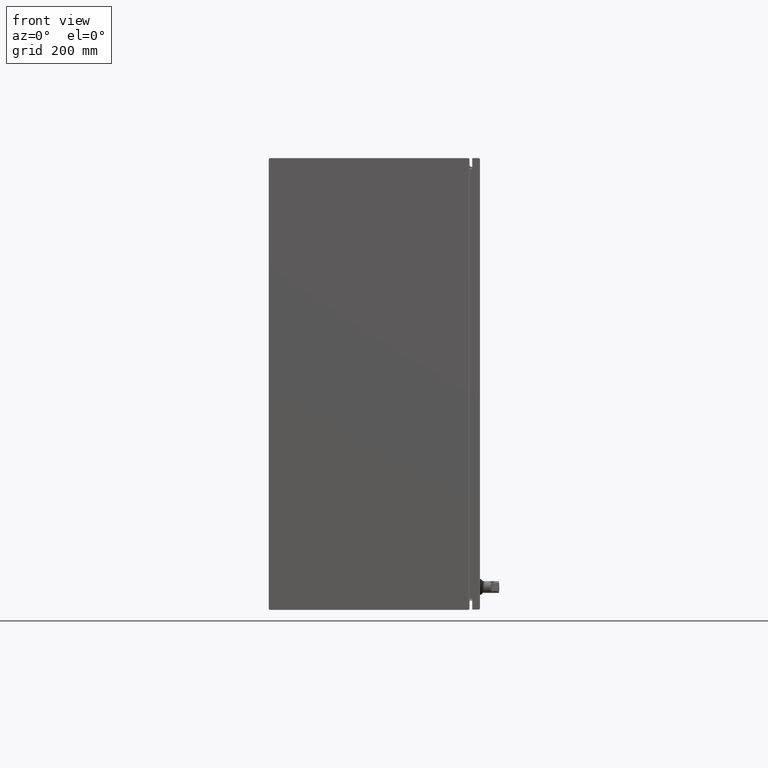
[diagram: clean part render]
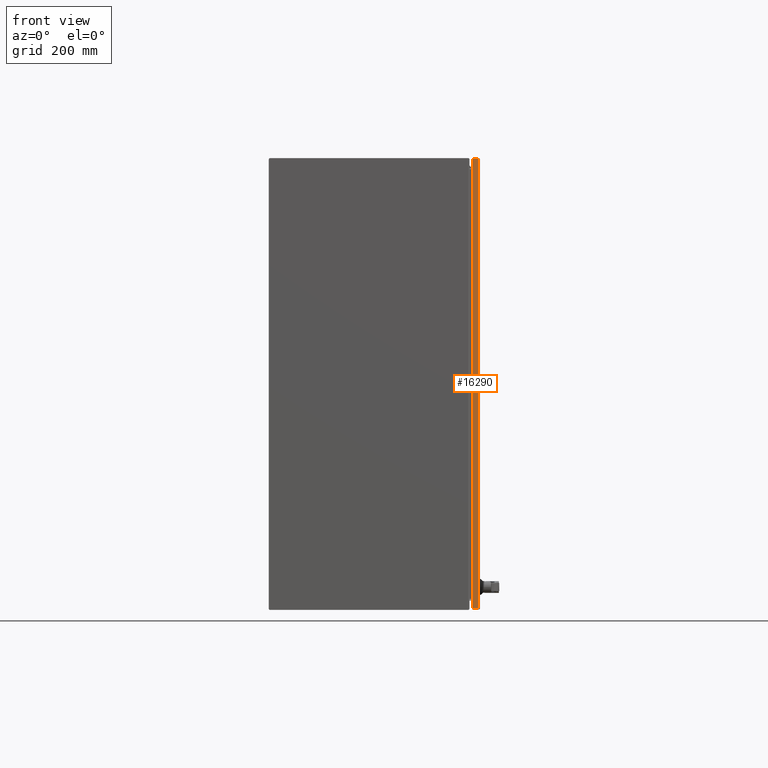
[diagram: same view with one face highlighted and labeled with its STEP entity id]
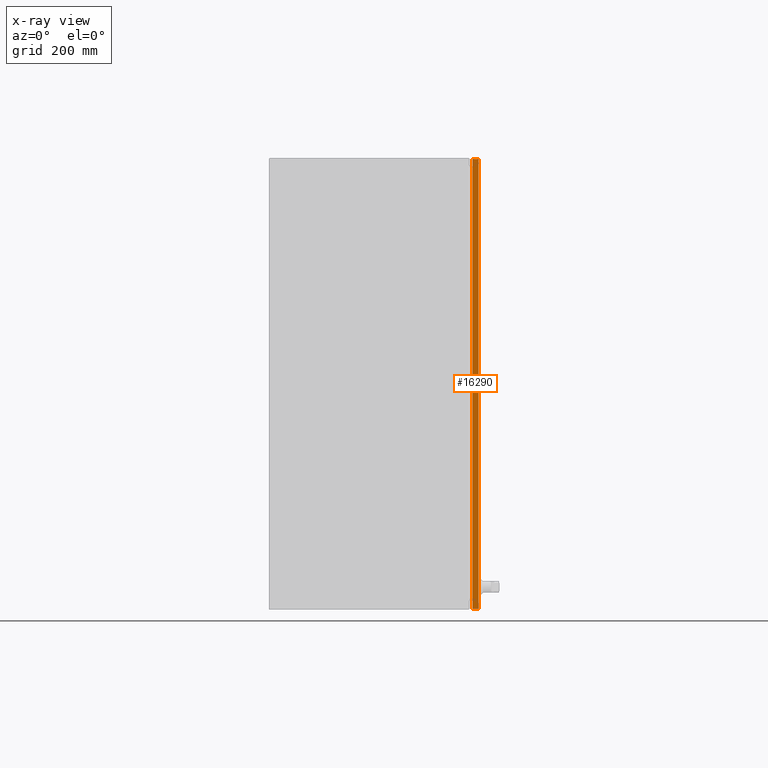
[diagram: x-ray of the same camera — body ghosted, the highlighted face saturated]
A machine part, front view. The second image highlights one B-rep face of the part: STEP entity #16290.
The next image is the same camera in x-ray: the body ghosted, the highlighted face saturated — about 0% of this face is hidden behind the body in this view.
In plain terms, the highlighted planar face has unit normal (0, -1, -0).
Its self-contained STEP definition (entity closure, byte-faithful):
#13659 = DIRECTION ( 'NONE',  ( 0.0000000000000000000, 6.123031769111889989E-17, -1.000000000000000000 ) ) ;
#16290 = ADVANCED_FACE ( 'NONE', ( #91015 ), #105779, .T. ) ;
#18582 = LINE ( 'NONE', #116276, #90906 ) ;
#24282 = VECTOR ( 'NONE', #80299, 39.37007874015748143 ) ;
#27286 = VECTOR ( 'NONE', #74791, 39.37007874015748143 ) ;
#27672 = LINE ( 'NONE', #61988, #50826 ) ;
#32105 = ORIENTED_EDGE ( 'NONE', *, *, #87012, .F. ) ;
#40355 = ORIENTED_EDGE ( 'NONE', *, *, #64696, .T. ) ;
#43693 = AXIS2_PLACEMENT_3D ( 'NONE', #69441, #13659, #78353 ) ;
#48641 = ORIENTED_EDGE ( 'NONE', *, *, #52215, .T. ) ;
#50826 = VECTOR ( 'NONE', #52270, 39.37007874015748143 ) ;
#52215 = EDGE_CURVE ( 'NONE', #97922, #96158, #18582, .T. ) ;
#52270 = DIRECTION ( 'NONE',  ( 1.000000000000000000, -3.749151804555340178E-33, -6.123031769111889989E-17 ) ) ;
#54918 = VERTEX_POINT ( 'NONE', #78960 ) ;
#61988 = CARTESIAN_POINT ( 'NONE',  ( 17.86500000000000909, -16.72900000000007381, -20.98449999999403204 ) ) ;
#64696 = EDGE_CURVE ( 'NONE', #96158, #54918, #119692, .T. ) ;
#69441 = CARTESIAN_POINT ( 'NONE',  ( 17.86500000000000909, -16.77450000000003882, -20.98449999999403559 ) ) ;
#71845 = CARTESIAN_POINT ( 'NONE',  ( 17.90092125984253002, -16.21200000000003882, -20.98449999999403559 ) ) ;
#73977 = EDGE_LOOP ( 'NONE', ( #32105, #48641, #40355, #113574 ) ) ;
#74791 = DIRECTION ( 'NONE',  ( 1.000000000000000000, -0.0000000000000000000, 0.0000000000000000000 ) ) ;
#78353 = DIRECTION ( 'NONE',  ( 0.0000000000000000000, 1.000000000000000000, 6.123031769111889989E-17 ) ) ;
#78960 = CARTESIAN_POINT ( 'NONE',  ( 17.90092125984253002, -16.21200000000003882, -20.98449999999403559 ) ) ;
#80299 = DIRECTION ( 'NONE',  ( 0.0000000000000000000, -1.000000000000000000, -0.0000000000000000000 ) ) ;
#81242 = VERTEX_POINT ( 'NONE', #101154 ) ;
#84069 = CARTESIAN_POINT ( 'NONE',  ( 17.86500000000000909, -16.21200000000003882, -20.98449999999403559 ) ) ;
#87012 = EDGE_CURVE ( 'NONE', #97922, #81242, #27672, .T. ) ;
#90719 = CARTESIAN_POINT ( 'NONE',  ( -17.92392125984251194, -16.21200000000003882, -20.98449999999403559 ) ) ;
#90906 = VECTOR ( 'NONE', #117062, 39.37007874015748143 ) ;
#91015 = FACE_OUTER_BOUND ( 'NONE', #73977, .T. ) ;
#96158 = VERTEX_POINT ( 'NONE', #90719 ) ;
#97922 = VERTEX_POINT ( 'NONE', #99332 ) ;
#97973 = LINE ( 'NONE', #71845, #24282 ) ;
#98942 = EDGE_CURVE ( 'NONE', #54918, #81242, #97973, .T. ) ;
#99332 = CARTESIAN_POINT ( 'NONE',  ( -17.92392125984251550, -16.72900000000005605, -20.98449999999403204 ) ) ;
#101154 = CARTESIAN_POINT ( 'NONE',  ( 17.90092125984253002, -16.72900000000005605, -20.98449999999403559 ) ) ;
#105779 = PLANE ( 'NONE',  #43693 ) ;
#113574 = ORIENTED_EDGE ( 'NONE', *, *, #98942, .T. ) ;
#116276 = CARTESIAN_POINT ( 'NONE',  ( -17.92392125984251550, -16.77450000000003882, -20.98449999999403559 ) ) ;
#117062 = DIRECTION ( 'NONE',  ( 0.0000000000000000000, 1.000000000000000000, 6.123031769111889989E-17 ) ) ;
#119692 = LINE ( 'NONE', #84069, #27286 ) ;